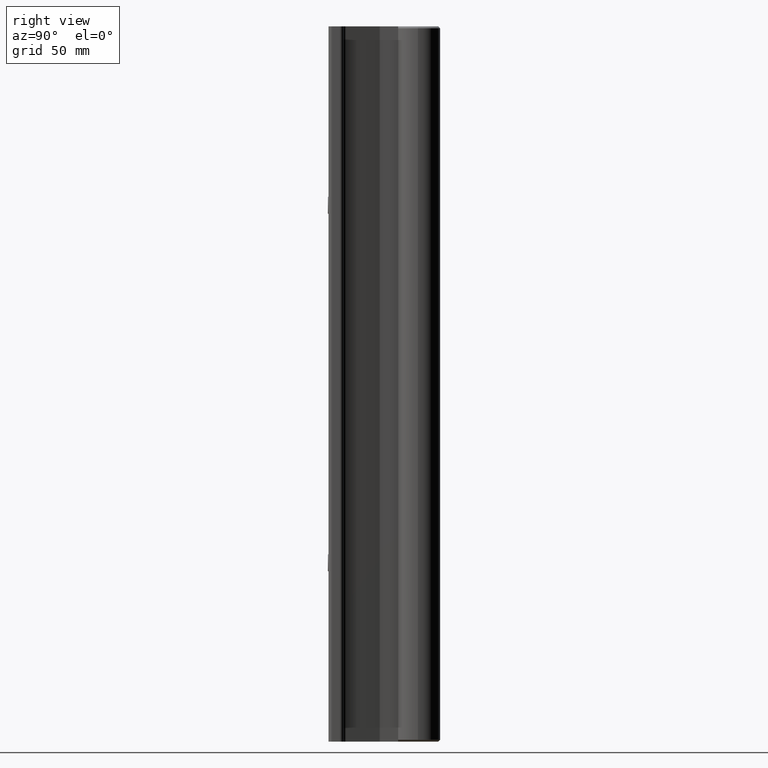
[diagram: clean part render]
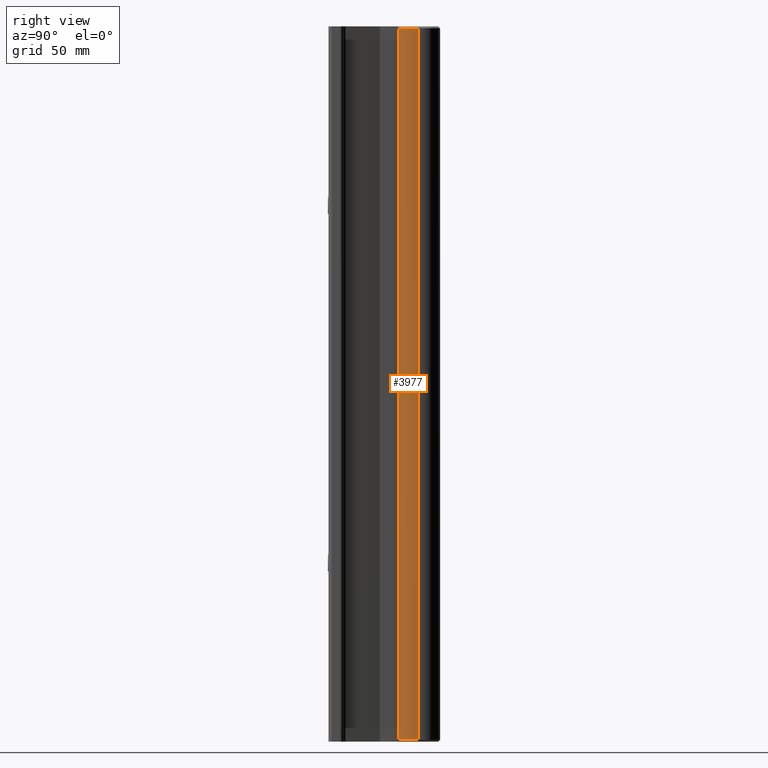
[diagram: same view with one face highlighted and labeled with its STEP entity id]
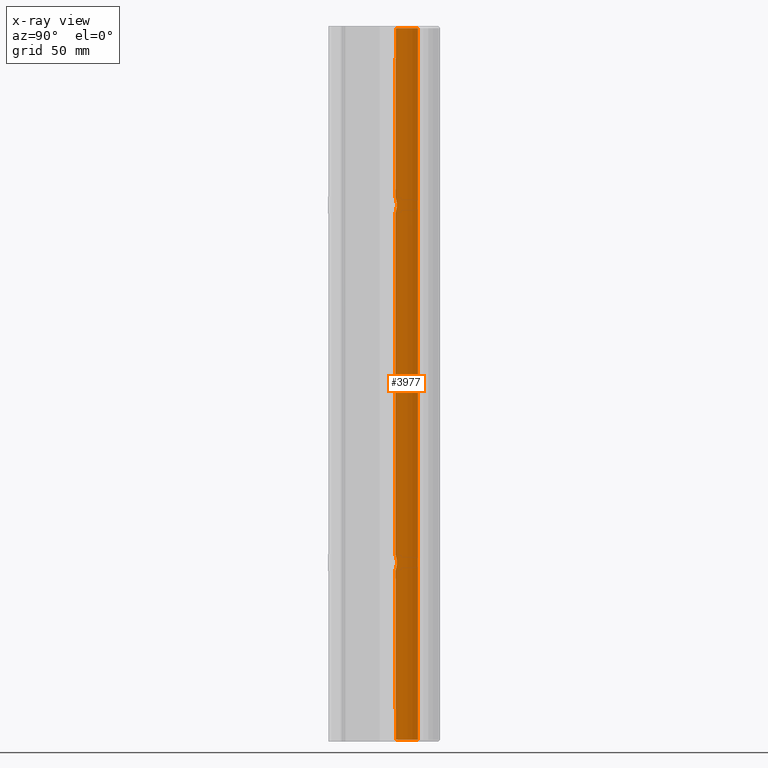
[diagram: x-ray of the same camera — body ghosted, the highlighted face saturated]
A machine part, right view. The second image highlights one B-rep face of the part: STEP entity #3977.
The next image is the same camera in x-ray: the body ghosted, the highlighted face saturated — about 0% of this face is hidden behind the body in this view.
In plain terms, the highlighted cylindrical surface (edge-blend (fillet) strip) has radius 9.525 mm, axis along (0, 0, 1).
Its self-contained STEP definition (entity closure, byte-faithful):
#6 = ORIENTED_EDGE ( 'NONE', *, *, #544, .T. ) ;
#11 = VERTEX_POINT ( 'NONE', #1317 ) ;
#20 = CARTESIAN_POINT ( 'NONE',  ( -0.09933638728234467363, 1.138365720413012649, -8.923690985503739626 ) ) ;
#62 = CARTESIAN_POINT ( 'NONE',  ( 0.09927870683307894739, 1.138349295819229168, -3.076392040618979529 ) ) ;
#71 = CARTESIAN_POINT ( 'NONE',  ( 0.09413140612909398630, 1.136958663453052853, -3.082643259064298480 ) ) ;
#99 = CARTESIAN_POINT ( 'NONE',  ( 0.1249990179307815252, 1.146446262192826637, -9.008251769670570397 ) ) ;
#138 = CARTESIAN_POINT ( 'NONE',  ( 0.07629384564802829671, 1.132778678738117328, -9.099349498394039060 ) ) ;
#160 = EDGE_CURVE ( 'NONE', #1448, #1140, #1864, .T. ) ;
#167 = CARTESIAN_POINT ( 'NONE',  ( 2.097213048187297684E-15, 1.124999999999999778, -2.875000000000000000 ) ) ;
#179 = CARTESIAN_POINT ( 'NONE',  ( -0.1185723957054424654, 1.144223880012038119, -8.959584239679655226 ) ) ;
#196 = DIRECTION ( 'NONE',  ( 1.000000000000000000, 0.0000000000000000000, 0.0000000000000000000 ) ) ;
#216 = CARTESIAN_POINT ( 'NONE',  ( -0.04047420807541089738, 1.127113368225226564, -2.881453399247499991 ) ) ;
#245 = CARTESIAN_POINT ( 'NONE',  ( 0.3749999999999999445, 1.499999999999999778, -0.03124999999999929223 ) ) ;
#248 = EDGE_CURVE ( 'NONE', #11, #2125, #831, .T. ) ;
#263 = VERTEX_POINT ( 'NONE', #1389 ) ;
#279 = EDGE_CURVE ( 'NONE', #579, #263, #898, .T. ) ;
#304 = CARTESIAN_POINT ( 'NONE',  ( -0.05552849340515732951, 1.129056354555276975, -8.887714451110316105 ) ) ;
#374 = CARTESIAN_POINT ( 'NONE',  ( 0.05563716654445831356, 1.129072035165736176, -3.112234197709794259 ) ) ;
#380 = CARTESIAN_POINT ( 'NONE',  ( 0.06278460617192910265, 1.130229337425312064, -9.108393574268717430 ) ) ;
#404 = CARTESIAN_POINT ( 'NONE',  ( 0.008197098410217915077, 1.125000000000000222, -8.874999999999998224 ) ) ;
#415 = CARTESIAN_POINT ( 'NONE',  ( 0.08267656770183459680, 1.134179936560775648, -3.094102152162706343 ) ) ;
#466 = EDGE_CURVE ( 'NONE', #2125, #1140, #2064, .T. ) ;
#493 = CARTESIAN_POINT ( 'NONE',  ( -0.03255629333503181483, 1.126329225507830323, -9.120963434814337134 ) ) ;
#515 = CARTESIAN_POINT ( 'NONE',  ( -0.07634699348806622821, 1.132789384939130173, -3.099310559574415702 ) ) ;
#536 = CARTESIAN_POINT ( 'NONE',  ( -0.1185237875825029957, 1.144208060990028475, -3.040536977969694465 ) ) ;
#544 = EDGE_CURVE ( 'NONE', #1448, #11, #1141, .T. ) ;
#579 = VERTEX_POINT ( 'NONE', #774 ) ;
#603 = ORIENTED_EDGE ( 'NONE', *, *, #1362, .T. ) ;
#630 = CARTESIAN_POINT ( 'NONE',  ( -0.01648624209988766923, 1.125274797949223249, -8.875817358519734412 ) ) ;
#664 = CARTESIAN_POINT ( 'NONE',  ( -0.3749999999999999445, 1.499999999999999778, -11.96874999999999645 ) ) ;
#677 = DIRECTION ( 'NONE',  ( 1.000000000000000000, 0.0000000000000000000, 0.0000000000000000000 ) ) ;
#684 = CARTESIAN_POINT ( 'NONE',  ( 0.1241918054842635760, 1.146157790565253798, -3.016408064705827563 ) ) ;
#699 = CARTESIAN_POINT ( 'NONE',  ( 0.03266774632321121918, 1.126337263159386426, -2.879061183262796586 ) ) ;
#709 = CARTESIAN_POINT ( 'NONE',  ( 0.1209654137732474183, 1.145041858245552158, -3.032560678855006575 ) ) ;
#715 = CARTESIAN_POINT ( 'NONE',  ( 0.1209500571403314823, 1.145036647307089428, -8.967396121079699967 ) ) ;
#726 = CARTESIAN_POINT ( 'NONE',  ( 0.01649640680358238978, 1.125276643179092817, -9.124176879621410663 ) ) ;
#755 = CARTESIAN_POINT ( 'NONE',  ( 0.1090963977429626197, 1.141158716857180844, -8.936805113730583727 ) ) ;
#774 = CARTESIAN_POINT ( 'NONE',  ( 6.354236240045021498E-17, 1.124999999999999778, -3.124999999999999556 ) ) ;
#801 = CARTESIAN_POINT ( 'NONE',  ( -0.1250040618164579009, 1.146448045475507271, -8.991841746362331023 ) ) ;
#813 = CARTESIAN_POINT ( 'NONE',  ( -0.1241888673462583081, 1.146156742583905874, -3.016433451939814603 ) ) ;
#831 = LINE ( 'NONE', #2337, #2540 ) ;
#842 = CARTESIAN_POINT ( 'NONE',  ( -0.1209558938445397108, 1.145038597399876013, -3.032597620460292021 ) ) ;
#849 = CARTESIAN_POINT ( 'NONE',  ( -0.1249959074323481467, 1.146445162465756340, -3.008282252000103796 ) ) ;
#862 = CARTESIAN_POINT ( 'NONE',  ( 0.0000000000000000000, 1.499999999999999778, -11.99999999999999822 ) ) ;
#898 = B_SPLINE_CURVE_WITH_KNOTS ( 'NONE', 3,
 ( #2936, #3250, #3283, #1162, #1151, #1486, #3613, #515, #1798, #3606, #3267, #536, #842, #813, #849, #2102, #3622, #1783, #2711, #1747, #3301, #1435, #2690, #3590, #2065, #2051, #1775, #216, #2362, #1444, #2394, #167 ),
 .UNSPECIFIED., .F., .F.,
 ( 4, 2, 2, 2, 2, 2, 2, 2, 2, 2, 2, 2, 2, 2, 2, 4 ),
 ( 1.566876027423624901E-18, 0.0006249108828500791806, 0.001249821765700156843, 0.001874732648550234398, 0.002499643531400312386, 0.003749465297100469229, 0.004374376179950528569, 0.004999287062800588342, 0.005624197945650648983, 0.006249108828500708757, 0.006874019711350768530, 0.007498930594200827436, 0.008123841477050888077, 0.008748752359900947850, 0.009373663242751009358, 0.009998574125601069132 ),
 .UNSPECIFIED. ) ;
#957 = CARTESIAN_POINT ( 'NONE',  ( 2.097213048189285219E-15, 1.124999999999999778, -8.874999999999998224 ) ) ;
#985 = CARTESIAN_POINT ( 'NONE',  ( 0.1209500571403312325, 1.145036647307089206, -2.967396121079697746 ) ) ;
#1007 = CARTESIAN_POINT ( 'NONE',  ( -8.374947378705658195E-17, 1.124999999999999778, -9.125000000000000000 ) ) ;
#1027 = CARTESIAN_POINT ( 'NONE',  ( 0.1250009802955067140, 1.146446955993523309, -2.991778010489037243 ) ) ;
#1030 = CARTESIAN_POINT ( 'NONE',  ( 0.1250009802955067695, 1.146446955993523531, -8.991778010489039019 ) ) ;
#1042 = CARTESIAN_POINT ( 'NONE',  ( 2.097213048187297684E-15, 1.124999999999999778, -2.875000000000000000 ) ) ;
#1050 = EDGE_CURVE ( 'NONE', #2306, #1573, #3827, .T. ) ;
#1071 = CARTESIAN_POINT ( 'NONE',  ( 0.1185326186922871505, 1.144210938468774419, -9.040514797093033295 ) ) ;
#1079 = FACE_OUTER_BOUND ( 'NONE', #2167, .T. ) ;
#1120 = AXIS2_PLACEMENT_3D ( 'NONE', #3983, #1537, #1835 ) ;
#1122 = CARTESIAN_POINT ( 'NONE',  ( -0.1185237875825029402, 1.144208060990028475, -9.040536977969692245 ) ) ;
#1138 = DIRECTION ( 'NONE',  ( 0.0000000000000000000, 0.0000000000000000000, 1.000000000000000000 ) ) ;
#1139 = CARTESIAN_POINT ( 'NONE',  ( -0.1091466335872150334, 1.141175278546628924, -9.063059904851265003 ) ) ;
#1140 = VERTEX_POINT ( 'NONE', #3071 ) ;
#1141 = CIRCLE ( 'NONE', #1323, 0.3749999999999999445 ) ;
#1151 = CARTESIAN_POINT ( 'NONE',  ( -0.04052925131260003838, 1.127118722568794196, -3.118530216658257359 ) ) ;
#1153 = CARTESIAN_POINT ( 'NONE',  ( -0.3749999999999999445, 1.499999999999999778, -11.99999999999999822 ) ) ;
#1162 = CARTESIAN_POINT ( 'NONE',  ( -0.03255629333503186340, 1.126329225507829657, -3.120963434814338022 ) ) ;
#1262 = CARTESIAN_POINT ( 'NONE',  ( -0.008199185978417122822, 1.124999999999999778, -8.874999999999998224 ) ) ;
#1317 = CARTESIAN_POINT ( 'NONE',  ( 0.3749999999999999445, 1.499999999999999778, -11.96874999999999645 ) ) ;
#1323 = AXIS2_PLACEMENT_3D ( 'NONE', #2229, #2859, #677 ) ;
#1334 = CARTESIAN_POINT ( 'NONE',  ( 0.05556862442868313462, 1.129062064057325010, -8.887733112153872739 ) ) ;
#1340 = CARTESIAN_POINT ( 'NONE',  ( 0.01645178346242905446, 1.125272950837599151, -2.875811764387531611 ) ) ;
#1352 = CARTESIAN_POINT ( 'NONE',  ( 0.03255240335413747688, 1.126328932588529730, -3.120964333197061347 ) ) ;
#1355 = CARTESIAN_POINT ( 'NONE',  ( 0.09994538311842349199, 1.138369034816674397, -8.923172858807872032 ) ) ;
#1362 = EDGE_CURVE ( 'NONE', #1573, #2306, #1966, .T. ) ;
#1389 = CARTESIAN_POINT ( 'NONE',  ( 2.097213048187297684E-15, 1.124999999999999778, -2.875000000000000000 ) ) ;
#1431 = CARTESIAN_POINT ( 'NONE',  ( -0.05564380897423275296, 1.129073007461675493, -9.112231007283426720 ) ) ;
#1435 = CARTESIAN_POINT ( 'NONE',  ( -0.09933638728234459037, 1.138365720413012427, -2.923690985503739181 ) ) ;
#1441 = CARTESIAN_POINT ( 'NONE',  ( -0.08270888014692261148, 1.134187380241393761, -9.094072904998501627 ) ) ;
#1444 = CARTESIAN_POINT ( 'NONE',  ( -0.01648624209988772474, 1.125274797949223249, -2.875817358519734857 ) ) ;
#1448 = VERTEX_POINT ( 'NONE', #664 ) ;
#1459 = ORIENTED_EDGE ( 'NONE', *, *, #2913, .T. ) ;
#1477 = ORIENTED_EDGE ( 'NONE', *, *, #279, .T. ) ;
#1486 = CARTESIAN_POINT ( 'NONE',  ( -0.05564380897423287786, 1.129073007461675049, -3.112231007283425388 ) ) ;
#1501 = ORIENTED_EDGE ( 'NONE', *, *, #466, .T. ) ;
#1537 = DIRECTION ( 'NONE',  ( 0.0000000000000000000, 0.0000000000000000000, -1.000000000000000000 ) ) ;
#1573 = VERTEX_POINT ( 'NONE', #1007 ) ;
#1582 = CARTESIAN_POINT ( 'NONE',  ( 2.097213048189285219E-15, 1.124999999999999778, -8.874999999999998224 ) ) ;
#1618 = CARTESIAN_POINT ( 'NONE',  ( 0.06287984198914980949, 1.130245640486009506, -2.891661897271242676 ) ) ;
#1641 = ORIENTED_EDGE ( 'NONE', *, *, #248, .T. ) ;
#1646 = CARTESIAN_POINT ( 'NONE',  ( 0.1122679117759137063, 1.142184748809113692, -9.055563895318959666 ) ) ;
#1658 = CARTESIAN_POINT ( 'NONE',  ( 0.1083932797338998250, 1.140975780241186843, -3.062792534659057875 ) ) ;
#1704 = CARTESIAN_POINT ( 'NONE',  ( -8.374947378705658195E-17, 1.124999999999999778, -9.125000000000000000 ) ) ;
#1742 = CARTESIAN_POINT ( 'NONE',  ( -0.04052925131259992736, 1.127118722568794640, -9.118530216658257359 ) ) ;
#1747 = CARTESIAN_POINT ( 'NONE',  ( -0.1122437319770860781, 1.142176852049964664, -2.944374544159568341 ) ) ;
#1775 = CARTESIAN_POINT ( 'NONE',  ( -0.05552849340515753074, 1.129056354555277197, -2.887714451110316105 ) ) ;
#1783 = CARTESIAN_POINT ( 'NONE',  ( -0.1209544131638264214, 1.145038121379762908, -2.967407062744348512 ) ) ;
#1798 = CARTESIAN_POINT ( 'NONE',  ( -0.08270888014692280577, 1.134187380241394205, -3.094072904998501627 ) ) ;
#1835 = DIRECTION ( 'NONE',  ( 1.000000000000000000, 0.0000000000000000000, 0.0000000000000000000 ) ) ;
#1864 = LINE ( 'NONE', #1153, #3001 ) ;
#1878 = B_SPLINE_CURVE_WITH_KNOTS ( 'NONE', 3,
 ( #1042, #3502, #1340, #699, #2260, #3793, #1618, #2544, #2875, #1979, #3465, #2567, #985, #2585, #1027, #3200, #684, #709, #2884, #3188, #1658, #62, #71, #415, #3814, #1923, #374, #1970, #1352, #3775, #2553, #2847 ),
 .UNSPECIFIED., .F., .F.,
 ( 4, 2, 2, 2, 2, 2, 2, 2, 2, 2, 2, 2, 2, 2, 2, 4 ),
 ( 0.009998574125601069132, 0.01062332590191391798, 0.01124807767822676684, 0.01187282945453961569, 0.01249758123085246454, 0.01374708478347816398, 0.01437183655979101284, 0.01499658833610386169, 0.01562134011241671228, 0.01624609188872956286, 0.01687084366504241345, 0.01749559544135526057, 0.01812034721766811463, 0.01874509899398096174, 0.01936985077029381580, 0.01999460254660666292 ),
 .UNSPECIFIED. ) ;
#1923 = CARTESIAN_POINT ( 'NONE',  ( 0.06278460617192940796, 1.130229337425312064, -3.108393574268719206 ) ) ;
#1966 = B_SPLINE_CURVE_WITH_KNOTS ( 'NONE', 3,
 ( #3399, #2788, #2361, #493, #1742, #1431, #3584, #2972, #1441, #2668, #1139, #1122, #3604, #3280, #2651, #801, #3265, #2060, #179, #3118, #2179, #20, #3108, #2494, #2798, #2202, #304, #3412, #2504, #630, #1262, #1582 ),
 .UNSPECIFIED., .F., .F.,
 ( 4, 2, 2, 2, 2, 2, 2, 2, 2, 2, 2, 2, 2, 2, 2, 4 ),
 ( 2.065158389285055442E-18, 0.0006249108828500682302, 0.001249821765700134509, 0.001874732648550200571, 0.002499643531400266849, 0.003749465297100398973, 0.004374376179950465252, 0.004999287062800531964, 0.005624197945650598676, 0.006249108828500666256, 0.006874019711350732968, 0.007498930594200801415, 0.008123841477050867260, 0.008748752359900935707, 0.009373663242751002420, 0.009998574125601069132 ),
 .UNSPECIFIED. ) ;
#1970 = CARTESIAN_POINT ( 'NONE',  ( 0.04052490638182626448, 1.127118274301449841, -3.118531605065489209 ) ) ;
#1973 = CARTESIAN_POINT ( 'NONE',  ( 0.03255240335413719238, 1.126328932588529730, -9.120964333197060014 ) ) ;
#1979 = CARTESIAN_POINT ( 'NONE',  ( 0.09994538311842336709, 1.138369034816674397, -2.923172858807872920 ) ) ;
#2002 = CARTESIAN_POINT ( 'NONE',  ( 0.09927870683307861432, 1.138349295819229168, -9.076392040618980417 ) ) ;
#2051 = CARTESIAN_POINT ( 'NONE',  ( -0.06284423705968483764, 1.130239494261856992, -2.891640906174729242 ) ) ;
#2060 = CARTESIAN_POINT ( 'NONE',  ( -0.1209544131638265879, 1.145038121379762908, -8.967407062744349844 ) ) ;
#2064 = CIRCLE ( 'NONE', #1120, 0.3749999999999999445 ) ;
#2065 = CARTESIAN_POINT ( 'NONE',  ( -0.07635022463610419141, 1.132790423690561266, -2.900693733610288483 ) ) ;
#2074 = AXIS2_PLACEMENT_3D ( 'NONE', #862, #1138, #196 ) ;
#2102 = CARTESIAN_POINT ( 'NONE',  ( -0.1250040618164579842, 1.146448045475507715, -2.991841746362331467 ) ) ;
#2125 = VERTEX_POINT ( 'NONE', #245 ) ;
#2167 = EDGE_LOOP ( 'NONE', ( #3253, #6, #1641, #1501 ) ) ;
#2179 = CARTESIAN_POINT ( 'NONE',  ( -0.1083646537625427148, 1.140967728712819484, -8.937167800081306623 ) ) ;
#2202 = CARTESIAN_POINT ( 'NONE',  ( -0.06284423705968493479, 1.130239494261857214, -8.891640906174727021 ) ) ;
#2229 = CARTESIAN_POINT ( 'NONE',  ( 0.0000000000000000000, 1.499999999999999778, -11.96874999999999645 ) ) ;
#2260 = CARTESIAN_POINT ( 'NONE',  ( 0.04048540440161958048, 1.127114285105012881, -2.881456091856274604 ) ) ;
#2261 = CARTESIAN_POINT ( 'NONE',  ( 0.1209654137732475571, 1.145041858245552158, -9.032560678855006131 ) ) ;
#2289 = CARTESIAN_POINT ( 'NONE',  ( 0.01645178346242937711, 1.125272950837599151, -8.875811764387533387 ) ) ;
#2303 = CARTESIAN_POINT ( 'NONE',  ( 0.09413140612909440264, 1.136958663453053076, -9.082643259064298036 ) ) ;
#2306 = VERTEX_POINT ( 'NONE', #957 ) ;
#2337 = CARTESIAN_POINT ( 'NONE',  ( 0.3749999999999999445, 1.499999999999999778, -11.99999999999999822 ) ) ;
#2361 = CARTESIAN_POINT ( 'NONE',  ( -0.01649604049918379153, 1.125276581205358672, -9.124177072946856981 ) ) ;
#2362 = CARTESIAN_POINT ( 'NONE',  ( -0.03267150337677346417, 1.126337925261777784, -2.879063250040802657 ) ) ;
#2394 = CARTESIAN_POINT ( 'NONE',  ( -0.008199185978417157517, 1.125000000000000000, -2.875000000000000000 ) ) ;
#2494 = CARTESIAN_POINT ( 'NONE',  ( -0.08260014785982905394, 1.134162219015206530, -8.905827788982144000 ) ) ;
#2504 = CARTESIAN_POINT ( 'NONE',  ( -0.03267150337677333927, 1.126337925261777562, -8.879063250040800881 ) ) ;
#2540 = VECTOR ( 'NONE', #2632, 39.37007874015748143 ) ;
#2544 = CARTESIAN_POINT ( 'NONE',  ( 0.07637577337513082321, 1.132795830430083139, -2.900713745801356769 ) ) ;
#2553 = CARTESIAN_POINT ( 'NONE',  ( 0.008321157592743225195, 1.124999999999999778, -3.125000000000000888 ) ) ;
#2567 = CARTESIAN_POINT ( 'NONE',  ( 0.1185730390998943201, 1.144224147783138745, -2.959588506444464251 ) ) ;
#2572 = CARTESIAN_POINT ( 'NONE',  ( 0.04048540440161972620, 1.127114285105012881, -8.881456091856273716 ) ) ;
#2585 = CARTESIAN_POINT ( 'NONE',  ( 0.1241678343262123674, 1.146149400175753064, -2.983438654594587014 ) ) ;
#2589 = CARTESIAN_POINT ( 'NONE',  ( 0.06287984198914953193, 1.130245640486009506, -8.891661897271243120 ) ) ;
#2609 = CARTESIAN_POINT ( 'NONE',  ( 0.03266774632321148980, 1.126337263159386426, -8.879061183262795254 ) ) ;
#2632 = DIRECTION ( 'NONE',  ( 0.0000000000000000000, 0.0000000000000000000, 1.000000000000000000 ) ) ;
#2651 = CARTESIAN_POINT ( 'NONE',  ( -0.1249959074323481467, 1.146445162465756340, -9.008282252000103796 ) ) ;
#2668 = CARTESIAN_POINT ( 'NONE',  ( -0.09986561048412578856, 1.138350464728789202, -9.076900852288481758 ) ) ;
#2690 = CARTESIAN_POINT ( 'NONE',  ( -0.09411010042740750037, 1.136952681569073587, -2.917329093678609819 ) ) ;
#2693 = DIRECTION ( 'NONE',  ( 0.0000000000000000000, 0.0000000000000000000, 1.000000000000000000 ) ) ;
#2711 = CARTESIAN_POINT ( 'NONE',  ( -0.1185723957054426320, 1.144223880012038119, -2.959584239679654782 ) ) ;
#2764 = EDGE_LOOP ( 'NONE', ( #1477, #1459 ) ) ;
#2788 = CARTESIAN_POINT ( 'NONE',  ( -0.008323276755297761079, 1.125000000000000000, -9.125000000000000000 ) ) ;
#2798 = CARTESIAN_POINT ( 'NONE',  ( -0.07635022463610424692, 1.132790423690561044, -8.900693733610289371 ) ) ;
#2847 = CARTESIAN_POINT ( 'NONE',  ( 6.354236240045021498E-17, 1.124999999999999778, -3.124999999999999556 ) ) ;
#2859 = DIRECTION ( 'NONE',  ( -0.0000000000000000000, -0.0000000000000000000, 1.000000000000000000 ) ) ;
#2875 = CARTESIAN_POINT ( 'NONE',  ( 0.08263376477293320199, 1.134169548060881993, -2.905854988304941156 ) ) ;
#2877 = CARTESIAN_POINT ( 'NONE',  ( 0.07637577337513055953, 1.132795830430083361, -8.900713745801358101 ) ) ;
#2884 = CARTESIAN_POINT ( 'NONE',  ( 0.1185326186922871922, 1.144210938468774419, -3.040514797093034627 ) ) ;
#2905 = CARTESIAN_POINT ( 'NONE',  ( 0.1185730390998943617, 1.144224147783138745, -8.959588506444465139 ) ) ;
#2913 = EDGE_CURVE ( 'NONE', #263, #579, #1878, .T. ) ;
#2925 = CARTESIAN_POINT ( 'NONE',  ( 0.1241678343262125617, 1.146149400175753064, -8.983438654594586126 ) ) ;
#2936 = CARTESIAN_POINT ( 'NONE',  ( 6.354236240045021498E-17, 1.124999999999999778, -3.124999999999999556 ) ) ;
#2972 = CARTESIAN_POINT ( 'NONE',  ( -0.07634699348806610331, 1.132789384939130839, -9.099310559574416146 ) ) ;
#3001 = VECTOR ( 'NONE', #2693, 39.37007874015748143 ) ;
#3071 = CARTESIAN_POINT ( 'NONE',  ( -0.3749999999999999445, 1.499999999999999778, -0.03124999999999929223 ) ) ;
#3108 = CARTESIAN_POINT ( 'NONE',  ( -0.09411010042740713955, 1.136952681569073809, -8.917329093678610263 ) ) ;
#3118 = CARTESIAN_POINT ( 'NONE',  ( -0.1122437319770857866, 1.142176852049964664, -8.944374544159565232 ) ) ;
#3149 = CYLINDRICAL_SURFACE ( 'NONE', #2074, 0.3749999999999999445 ) ;
#3177 = CARTESIAN_POINT ( 'NONE',  ( 2.097213048189285219E-15, 1.124999999999999778, -8.874999999999998224 ) ) ;
#3188 = CARTESIAN_POINT ( 'NONE',  ( 0.1122679117759137896, 1.142184748809113692, -3.055563895318961443 ) ) ;
#3190 = CARTESIAN_POINT ( 'NONE',  ( 0.08267656770183509640, 1.134179936560775648, -9.094102152162705011 ) ) ;
#3200 = CARTESIAN_POINT ( 'NONE',  ( 0.1249990179307815669, 1.146446262192826637, -3.008251769670571285 ) ) ;
#3228 = CARTESIAN_POINT ( 'NONE',  ( 0.04052490638182602856, 1.127118274301449841, -9.118531605065490098 ) ) ;
#3250 = CARTESIAN_POINT ( 'NONE',  ( -0.008323276755297724649, 1.124999999999999778, -3.124999999999999112 ) ) ;
#3253 = ORIENTED_EDGE ( 'NONE', *, *, #160, .F. ) ;
#3265 = CARTESIAN_POINT ( 'NONE',  ( -0.1241761983711994755, 1.146152325010479034, -8.983491172639070044 ) ) ;
#3267 = CARTESIAN_POINT ( 'NONE',  ( -0.1091466335872149501, 1.141175278546628702, -3.063059904851265447 ) ) ;
#3280 = CARTESIAN_POINT ( 'NONE',  ( -0.1241888673462582665, 1.146156742583905430, -9.016433451939814603 ) ) ;
#3283 = CARTESIAN_POINT ( 'NONE',  ( -0.01649604049918383664, 1.125276581205358672, -3.124177072946855649 ) ) ;
#3301 = CARTESIAN_POINT ( 'NONE',  ( -0.1083646537625426315, 1.140967728712819262, -2.937167800081305735 ) ) ;
#3387 = FACE_BOUND ( 'NONE', #2764, .T. ) ;
#3399 = CARTESIAN_POINT ( 'NONE',  ( -8.374947378705658195E-17, 1.124999999999999778, -9.125000000000000000 ) ) ;
#3412 = CARTESIAN_POINT ( 'NONE',  ( -0.04047420807541071003, 1.127113368225226564, -8.881453399247499547 ) ) ;
#3465 = CARTESIAN_POINT ( 'NONE',  ( 0.1090963977429626336, 1.141158716857180844, -2.936805113730584171 ) ) ;
#3489 = CARTESIAN_POINT ( 'NONE',  ( 0.1241918054842636593, 1.146157790565254020, -9.016408064705826675 ) ) ;
#3502 = CARTESIAN_POINT ( 'NONE',  ( 0.008197098410217954975, 1.125000000000000222, -2.874999999999999112 ) ) ;
#3545 = CARTESIAN_POINT ( 'NONE',  ( 0.008321157592743280706, 1.124999999999999778, -9.125000000000000000 ) ) ;
#3575 = EDGE_LOOP ( 'NONE', ( #603, #3941 ) ) ;
#3584 = CARTESIAN_POINT ( 'NONE',  ( -0.06280237164814420070, 1.130232016876234757, -9.108385020980847457 ) ) ;
#3588 = FACE_BOUND ( 'NONE', #3575, .T. ) ;
#3590 = CARTESIAN_POINT ( 'NONE',  ( -0.08260014785982948415, 1.134162219015206974, -2.905827788982146664 ) ) ;
#3604 = CARTESIAN_POINT ( 'NONE',  ( -0.1209558938445397247, 1.145038597399876013, -9.032597620460290244 ) ) ;
#3606 = CARTESIAN_POINT ( 'NONE',  ( -0.09986561048412598285, 1.138350464728788758, -3.076900852288477761 ) ) ;
#3613 = CARTESIAN_POINT ( 'NONE',  ( -0.06280237164814428397, 1.130232016876234757, -3.108385020980847901 ) ) ;
#3622 = CARTESIAN_POINT ( 'NONE',  ( -0.1241761983711994893, 1.146152325010478812, -2.983491172639069600 ) ) ;
#3775 = CARTESIAN_POINT ( 'NONE',  ( 0.01649640680358269509, 1.125276643179092595, -3.124176879621411551 ) ) ;
#3793 = CARTESIAN_POINT ( 'NONE',  ( 0.05556862442868306523, 1.129062064057325010, -2.887733112153873183 ) ) ;
#3814 = CARTESIAN_POINT ( 'NONE',  ( 0.07629384564802857427, 1.132778678738117328, -3.099349498394039948 ) ) ;
#3820 = CARTESIAN_POINT ( 'NONE',  ( 0.05563716654445806375, 1.129072035165736176, -9.112234197709792483 ) ) ;
#3827 = B_SPLINE_CURVE_WITH_KNOTS ( 'NONE', 3,
 ( #3177, #404, #2289, #2609, #2572, #1334, #2589, #2877, #3833, #1355, #755, #2905, #715, #2925, #1030, #99, #3489, #2261, #1071, #1646, #3852, #2002, #2303, #3190, #138, #380, #3820, #3228, #1973, #726, #3545, #1704 ),
 .UNSPECIFIED., .F., .F.,
 ( 4, 2, 2, 2, 2, 2, 2, 2, 2, 2, 2, 2, 2, 2, 2, 4 ),
 ( 0.009998574125601069132, 0.01062332590191391798, 0.01124807767822676857, 0.01187282945453961742, 0.01249758123085246628, 0.01374708478347816398, 0.01437183655979101457, 0.01499658833610386516, 0.01562134011241671575, 0.01624609188872956633, 0.01687084366504241692, 0.01749559544135526751, 0.01812034721766811809, 0.01874509899398096868, 0.01936985077029381927, 0.01999460254660666986 ),
 .UNSPECIFIED. ) ;
#3833 = CARTESIAN_POINT ( 'NONE',  ( 0.08263376477293328526, 1.134169548060881993, -8.905854988304941600 ) ) ;
#3852 = CARTESIAN_POINT ( 'NONE',  ( 0.1083932797338995196, 1.140975780241187065, -9.062792534659058319 ) ) ;
#3941 = ORIENTED_EDGE ( 'NONE', *, *, #1050, .T. ) ;
#3977 = ADVANCED_FACE ( 'NONE', ( #1079, #3387, #3588 ), #3149, .T. ) ;
#3983 = CARTESIAN_POINT ( 'NONE',  ( 0.0000000000000000000, 1.499999999999999778, -0.03124999999999929223 ) ) ;